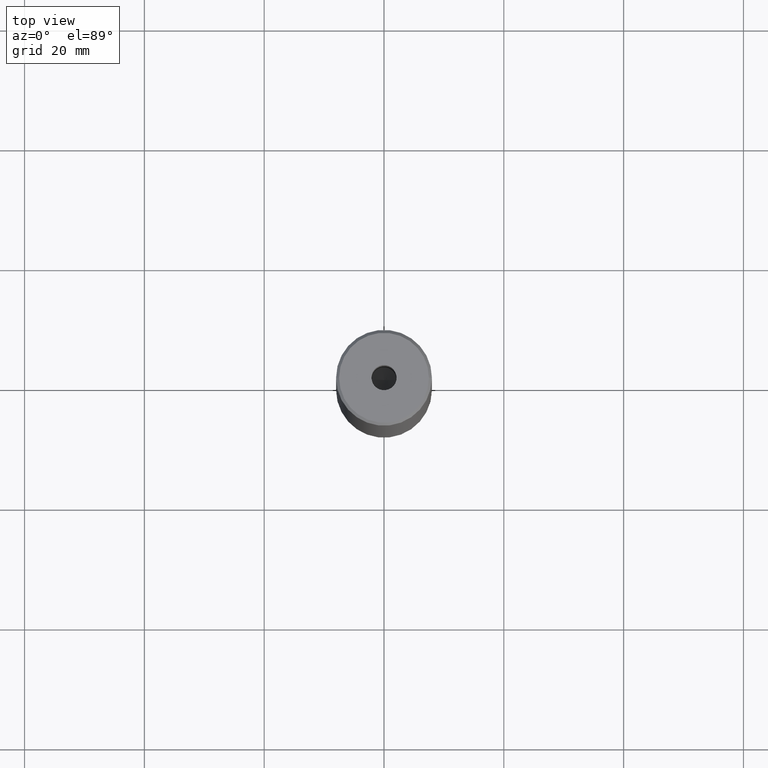
[diagram: clean part render]
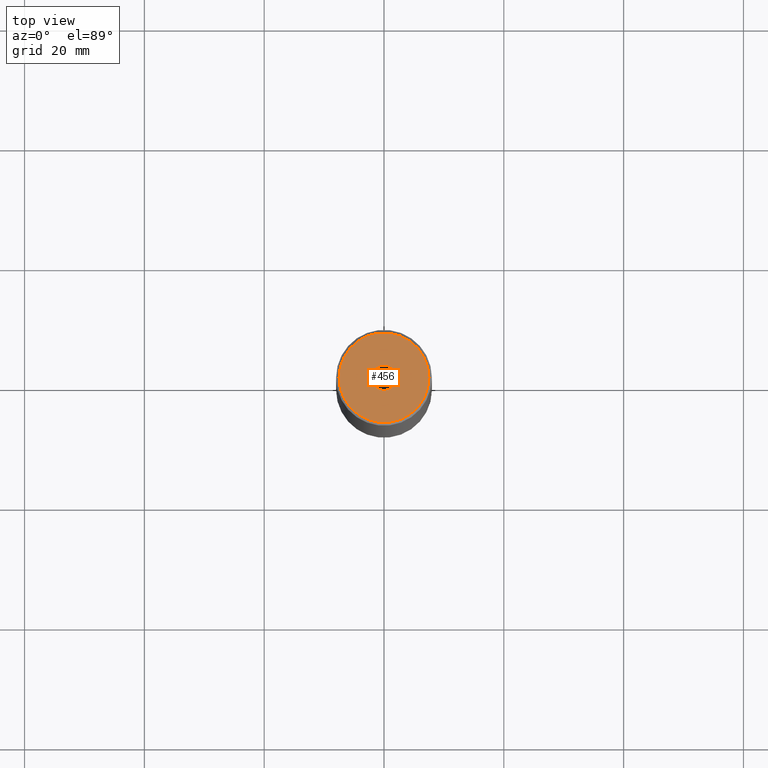
[diagram: same view with one face highlighted and labeled with its STEP entity id]
A machine part, top view. The second image highlights one B-rep face of the part: STEP entity #456.
In plain terms, the highlighted planar face has unit normal (0, -0, 1).
Its self-contained STEP definition (entity closure, byte-faithful):
#23 = CARTESIAN_POINT ( 'NONE',  ( 7.499999999999978684, 9.491012693391973982E-16, 0.000000000000000000 ) ) ;
#28 = VERTEX_POINT ( 'NONE', #94 ) ;
#33 = CARTESIAN_POINT ( 'NONE',  ( 0.000000000000000000, 0.000000000000000000, 0.000000000000000000 ) ) ;
#53 = CARTESIAN_POINT ( 'NONE',  ( 0.000000000000000000, 0.000000000000000000, -1.990051048614449116E-16 ) ) ;
#54 = CIRCLE ( 'NONE', #280, 2.099999999999998757 ) ;
#58 = PLANE ( 'NONE',  #166 ) ;
#59 = ORIENTED_EDGE ( 'NONE', *, *, #383, .T. ) ;
#63 = DIRECTION ( 'NONE',  ( 0.000000000000000000, -0.000000000000000000, 1.000000000000000000 ) ) ;
#65 = ORIENTED_EDGE ( 'NONE', *, *, #459, .T. ) ;
#94 = CARTESIAN_POINT ( 'NONE',  ( -7.499999999999978684, 0.000000000000000000, 0.000000000000000000 ) ) ;
#105 = VERTEX_POINT ( 'NONE', #23 ) ;
#108 = DIRECTION ( 'NONE',  ( 1.000000000000000000, 0.000000000000000000, 0.000000000000000000 ) ) ;
#113 = FACE_BOUND ( 'NONE', #201, .T. ) ;
#121 = CIRCLE ( 'NONE', #369, 7.499999999999978684 ) ;
#143 = DIRECTION ( 'NONE',  ( -0.000000000000000000, -0.000000000000000000, 1.000000000000000000 ) ) ;
#166 = AXIS2_PLACEMENT_3D ( 'NONE', #234, #63, #183 ) ;
#183 = DIRECTION ( 'NONE',  ( 1.000000000000000000, 0.000000000000000000, 0.000000000000000000 ) ) ;
#198 = CIRCLE ( 'NONE', #333, 2.099999999999998757 ) ;
#201 = EDGE_LOOP ( 'NONE', ( #481, #439 ) ) ;
#230 = DIRECTION ( 'NONE',  ( -0.000000000000000000, -0.000000000000000000, 1.000000000000000000 ) ) ;
#234 = CARTESIAN_POINT ( 'NONE',  ( 0.000000000000000000, 0.000000000000000000, 0.000000000000000000 ) ) ;
#236 = DIRECTION ( 'NONE',  ( 1.000000000000000000, 0.000000000000000000, 0.000000000000000000 ) ) ;
#264 = CARTESIAN_POINT ( 'NONE',  ( -2.099999999999998757, 2.571758278209440478E-16, -1.990051048614449116E-16 ) ) ;
#267 = EDGE_CURVE ( 'NONE', #489, #270, #198, .T. ) ;
#270 = VERTEX_POINT ( 'NONE', #264 ) ;
#280 = AXIS2_PLACEMENT_3D ( 'NONE', #428, #143, #108 ) ;
#283 = CARTESIAN_POINT ( 'NONE',  ( 0.000000000000000000, 0.000000000000000000, 0.000000000000000000 ) ) ;
#292 = FACE_OUTER_BOUND ( 'NONE', #465, .T. ) ;
#333 = AXIS2_PLACEMENT_3D ( 'NONE', #53, #230, #405 ) ;
#338 = DIRECTION ( 'NONE',  ( -0.000000000000000000, -0.000000000000000000, 1.000000000000000000 ) ) ;
#354 = EDGE_CURVE ( 'NONE', #270, #489, #54, .T. ) ;
#357 = AXIS2_PLACEMENT_3D ( 'NONE', #283, #420, #236 ) ;
#369 = AXIS2_PLACEMENT_3D ( 'NONE', #33, #338, #391 ) ;
#383 = EDGE_CURVE ( 'NONE', #28, #105, #478, .T. ) ;
#391 = DIRECTION ( 'NONE',  ( 1.000000000000000000, 0.000000000000000000, 0.000000000000000000 ) ) ;
#405 = DIRECTION ( 'NONE',  ( 1.000000000000000000, 0.000000000000000000, 0.000000000000000000 ) ) ;
#420 = DIRECTION ( 'NONE',  ( -0.000000000000000000, -0.000000000000000000, 1.000000000000000000 ) ) ;
#428 = CARTESIAN_POINT ( 'NONE',  ( 0.000000000000000000, 0.000000000000000000, -1.990051048614449116E-16 ) ) ;
#439 = ORIENTED_EDGE ( 'NONE', *, *, #354, .F. ) ;
#456 = ADVANCED_FACE ( 'NONE', ( #113, #292 ), #58, .T. ) ;
#459 = EDGE_CURVE ( 'NONE', #105, #28, #121, .T. ) ;
#465 = EDGE_LOOP ( 'NONE', ( #59, #65 ) ) ;
#478 = CIRCLE ( 'NONE', #357, 7.499999999999978684 ) ;
#481 = ORIENTED_EDGE ( 'NONE', *, *, #267, .F. ) ;
#483 = CARTESIAN_POINT ( 'NONE',  ( 2.099999999999998757, 0.000000000000000000, -1.990051048614449116E-16 ) ) ;
#489 = VERTEX_POINT ( 'NONE', #483 ) ;